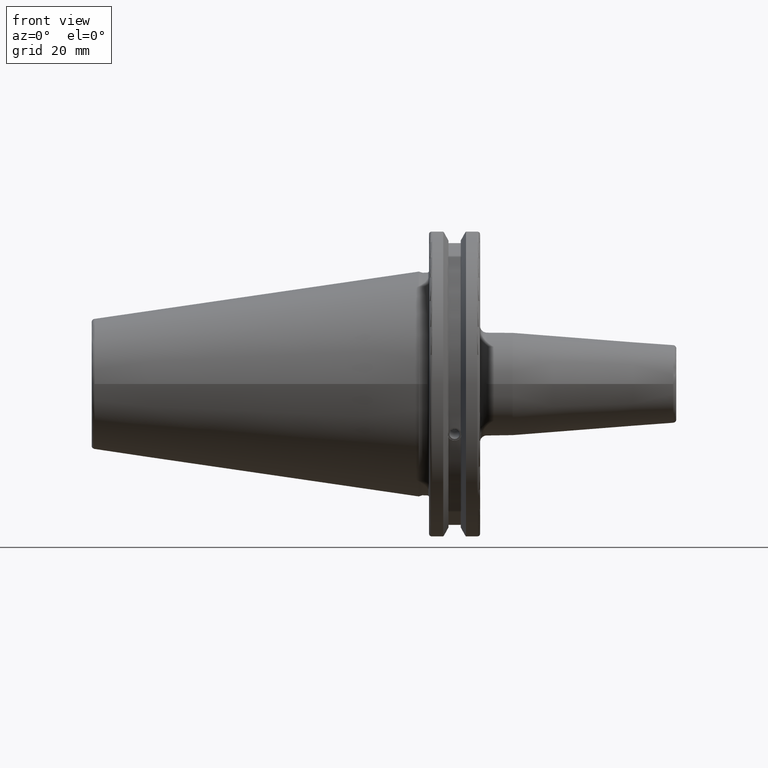
[diagram: clean part render]
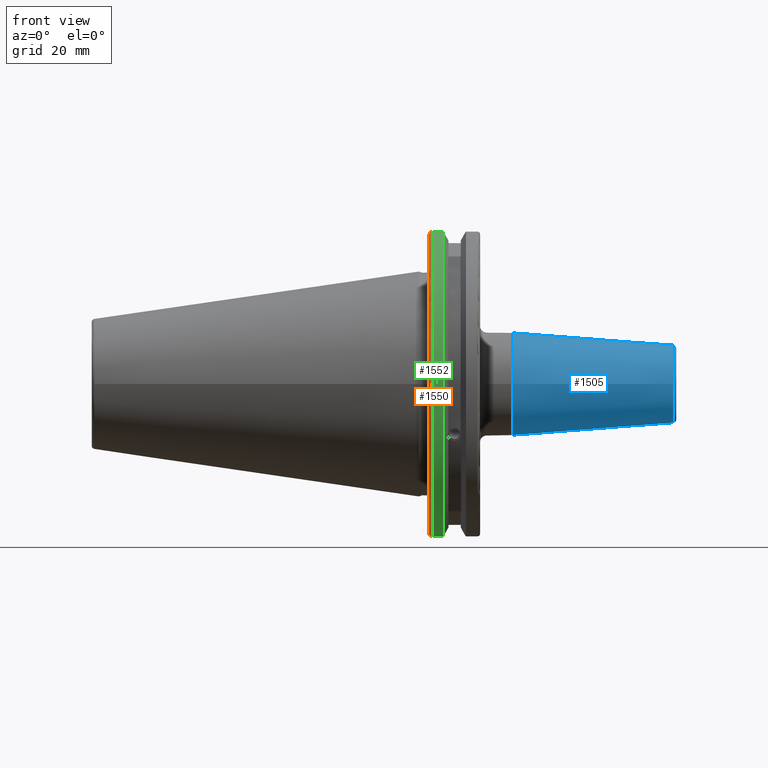
[diagram: same view with three faces highlighted in distinct colors, each labeled with its STEP entity id]
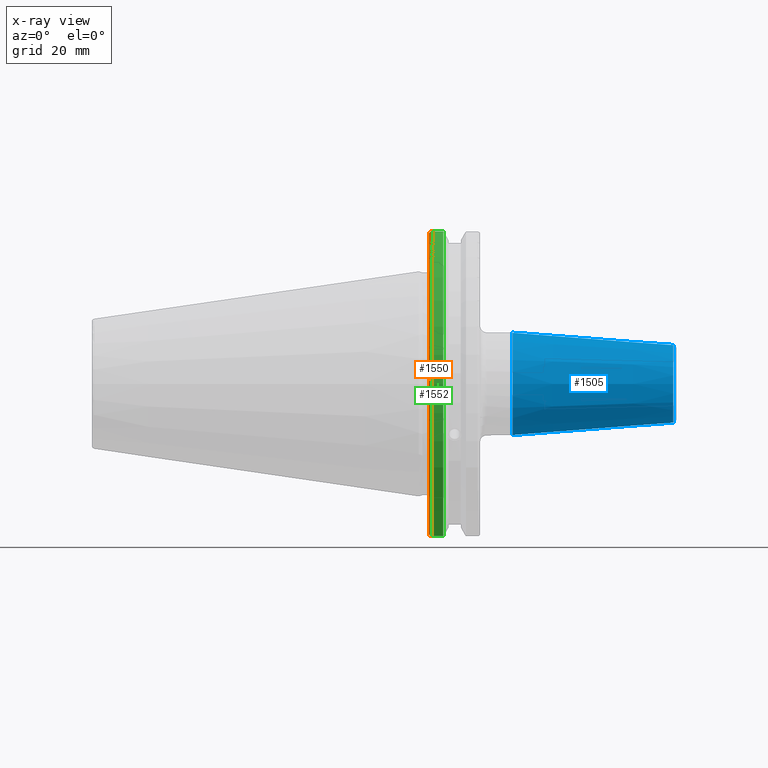
[diagram: x-ray of the same camera — body ghosted, the three highlighted faces saturated]
A machine part, front view with three faces highlighted in distinct colors.
The next image is the same camera in x-ray (body ghosted, the three faces saturated) — at least one of them is partly hidden behind the body in this view.
Their STEP definitions:

[orange] entity #1550 — the highlighted toroidal blend (fillet) surface has major radius 48.2125 mm and minor (blend) radius 1 mm.
#62=B_SPLINE_CURVE_WITH_KNOTS('',3,(#2984,#2985,#2986,#2987,#2988,#2989),
 .UNSPECIFIED.,.F.,.F.,(4,2,4),(0.0976892167532858,0.112000071948292,0.150881870548587),
 .UNSPECIFIED.);
#63=B_SPLINE_CURVE_WITH_KNOTS('',3,(#3010,#3011,#3012,#3013,#3014,#3015),
 .UNSPECIFIED.,.F.,.F.,(4,2,4),(0.452859340315922,0.491741138916218,0.506051994111223),
 .UNSPECIFIED.);
#64=B_SPLINE_CURVE_WITH_KNOTS('',3,(#3019,#3020,#3021,#3022,#3023,#3024,
#3025,#3026),.UNSPECIFIED.,.F.,.F.,(4,2,2,4),(-0.104075769062722,-0.0730268503455485,
-0.034363987365627,0.),.UNSPECIFIED.);
#65=B_SPLINE_CURVE_WITH_KNOTS('',3,(#3029,#3030,#3031,#3032,#3033,#3034,
#3035,#3036),.UNSPECIFIED.,.F.,.F.,(4,2,2,4),(0.,0.0343639873656262,0.073026850345548,
0.104075769062723),.UNSPECIFIED.);
#110=TOROIDAL_SURFACE('',#1725,48.2125,1.);
#205=FACE_OUTER_BOUND('',#314,.T.);
#314=EDGE_LOOP('',(#1301,#1302,#1303,#1304,#1305,#1306));
#407=CIRCLE('',#1713,48.2125);
#412=CIRCLE('',#1726,49.2125);
#725=VERTEX_POINT('',#2864);
#726=VERTEX_POINT('',#2865);
#749=VERTEX_POINT('',#2983);
#755=VERTEX_POINT('',#3008);
#756=VERTEX_POINT('',#3018);
#757=VERTEX_POINT('',#3027);
#912=EDGE_CURVE('',#725,#726,#407,.T.);
#944=EDGE_CURVE('',#749,#725,#62,.T.);
#954=EDGE_CURVE('',#726,#755,#63,.T.);
#956=EDGE_CURVE('',#755,#756,#64,.T.);
#957=EDGE_CURVE('',#756,#757,#412,.T.);
#958=EDGE_CURVE('',#757,#749,#65,.T.);
#1301=ORIENTED_EDGE('',*,*,#956,.T.);
#1302=ORIENTED_EDGE('',*,*,#957,.T.);
#1303=ORIENTED_EDGE('',*,*,#958,.T.);
#1304=ORIENTED_EDGE('',*,*,#944,.T.);
#1305=ORIENTED_EDGE('',*,*,#912,.T.);
#1306=ORIENTED_EDGE('',*,*,#954,.T.);
#1550=ADVANCED_FACE('',(#205),#110,.T.);
#1713=AXIS2_PLACEMENT_3D('',#2866,#2037,#2038);
#1725=AXIS2_PLACEMENT_3D('',#3017,#2085,#2086);
#1726=AXIS2_PLACEMENT_3D('',#3028,#2087,#2088);
#2037=DIRECTION('center_axis',(1.,0.,0.));
#2038=DIRECTION('ref_axis',(0.,-1.,1.60812264967664E-16));
#2085=DIRECTION('center_axis',(1.,0.,0.));
#2086=DIRECTION('ref_axis',(0.,0.,-1.));
#2087=DIRECTION('center_axis',(-1.,0.,0.));
#2088=DIRECTION('ref_axis',(0.,-1.,1.60812264967664E-16));
#2864=CARTESIAN_POINT('',(3.175,-12.95,46.4407434937254));
#2865=CARTESIAN_POINT('',(3.175,-12.95,-46.4407434937254));
#2866=CARTESIAN_POINT('Origin',(3.175,0.,0.));
#2983=CARTESIAN_POINT('',(3.31949794294344,-12.95,46.9780755322918));
#2984=CARTESIAN_POINT('Ctrl Pts',(3.31949794294344,-12.95,46.9780755322918));
#2985=CARTESIAN_POINT('Ctrl Pts',(3.29341556483839,-12.95,46.9333752207329));
#2986=CARTESIAN_POINT('Ctrl Pts',(3.27115672912336,-12.95,46.887363294568));
#2987=CARTESIAN_POINT('Ctrl Pts',(3.20453530071253,-12.95,46.7230464903732));
#2988=CARTESIAN_POINT('Ctrl Pts',(3.175,-12.95,46.5703494890597));
#2989=CARTESIAN_POINT('Ctrl Pts',(3.175,-12.95,46.4407434937254));
#3008=CARTESIAN_POINT('',(3.31949794294343,-12.95,-46.9780755322917));
#3010=CARTESIAN_POINT('Ctrl Pts',(3.175,-12.95,-46.4407434937254));
#3011=CARTESIAN_POINT('Ctrl Pts',(3.175,-12.95,-46.5703494890597));
#3012=CARTESIAN_POINT('Ctrl Pts',(3.20453530071253,-12.95,-46.7230464903732));
#3013=CARTESIAN_POINT('Ctrl Pts',(3.27115672912336,-12.95,-46.887363294568));
#3014=CARTESIAN_POINT('Ctrl Pts',(3.29341556483838,-12.95,-46.9333752207329));
#3015=CARTESIAN_POINT('Ctrl Pts',(3.31949794294343,-12.95,-46.9780755322917));
#3017=CARTESIAN_POINT('Origin',(4.175,0.,0.));
#3018=CARTESIAN_POINT('',(4.175,-13.4317035994433,-47.3440544806494));
#3019=CARTESIAN_POINT('Ctrl Pts',(3.31949794294343,-12.95,-46.9780755322917));
#3020=CARTESIAN_POINT('Ctrl Pts',(3.36785032278753,-13.0300321736484,-47.0388807469102));
#3021=CARTESIAN_POINT('Ctrl Pts',(3.43235971798504,-13.1083611826073,-47.0983919657547));
#3022=CARTESIAN_POINT('Ctrl Pts',(3.58507512107923,-13.2478194810696,-47.2043467509586));
#3023=CARTESIAN_POINT('Ctrl Pts',(3.70638116490964,-13.3242014686233,-47.2623787015413));
#3024=CARTESIAN_POINT('Ctrl Pts',(3.92661103245834,-13.4067722493645,-47.3251126473446));
#3025=CARTESIAN_POINT('Ctrl Pts',(4.06045337544791,-13.4317035994434,-47.3440544806494));
#3026=CARTESIAN_POINT('Ctrl Pts',(4.175,-13.4317035994434,-47.3440544806494));
#3027=CARTESIAN_POINT('',(4.175,-13.4317035994433,47.3440544806494));
#3028=CARTESIAN_POINT('Origin',(4.175,0.,0.));
#3029=CARTESIAN_POINT('Ctrl Pts',(4.175,-13.4317035994433,47.3440544806494));
#3030=CARTESIAN_POINT('Ctrl Pts',(4.06045337544791,-13.4317035994433,47.3440544806494));
#3031=CARTESIAN_POINT('Ctrl Pts',(3.92661103245835,-13.4067722493645,47.3251126473446));
#3032=CARTESIAN_POINT('Ctrl Pts',(3.70638116490965,-13.3242014686233,47.2623787015413));
#3033=CARTESIAN_POINT('Ctrl Pts',(3.58507512107923,-13.2478194810695,47.2043467509586));
#3034=CARTESIAN_POINT('Ctrl Pts',(3.43235971798504,-13.1083611826073,47.0983919657547));
#3035=CARTESIAN_POINT('Ctrl Pts',(3.36785032278754,-13.0300321736484,47.0388807469102));
#3036=CARTESIAN_POINT('Ctrl Pts',(3.31949794294344,-12.95,46.9780755322918));

[blue] entity #1505 — the highlighted conical surface has half-angle 4.5 deg.
#69=CONICAL_SURFACE('',#1631,14.,0.0785398163397454);
#160=FACE_OUTER_BOUND('',#253,.T.);
#253=EDGE_LOOP('',(#1037,#1038,#1039,#1040,#1041));
#363=CIRCLE('',#1629,12.0725268420749);
#364=CIRCLE('',#1630,12.0725268420749);
#365=CIRCLE('',#1632,16.);
#435=LINE('',#2260,#529);
#529=VECTOR('',#1831,14.);
#633=VERTEX_POINT('',#2253);
#634=VERTEX_POINT('',#2255);
#635=VERTEX_POINT('',#2259);
#792=EDGE_CURVE('',#633,#634,#363,.T.);
#793=EDGE_CURVE('',#634,#633,#364,.T.);
#794=EDGE_CURVE('',#634,#635,#435,.T.);
#795=EDGE_CURVE('',#635,#635,#365,.T.);
#1037=ORIENTED_EDGE('',*,*,#793,.F.);
#1038=ORIENTED_EDGE('',*,*,#794,.T.);
#1039=ORIENTED_EDGE('',*,*,#795,.T.);
#1040=ORIENTED_EDGE('',*,*,#794,.F.);
#1041=ORIENTED_EDGE('',*,*,#792,.F.);
#1505=ADVANCED_FACE('',(#160),#69,.T.);
#1629=AXIS2_PLACEMENT_3D('',#2256,#1825,#1826);
#1630=AXIS2_PLACEMENT_3D('',#2257,#1827,#1828);
#1631=AXIS2_PLACEMENT_3D('',#2258,#1829,#1830);
#1632=AXIS2_PLACEMENT_3D('',#2261,#1832,#1833);
#1825=DIRECTION('center_axis',(1.,0.,0.));
#1826=DIRECTION('ref_axis',(0.,-1.,3.06161699786838E-17));
#1827=DIRECTION('center_axis',(1.,0.,0.));
#1828=DIRECTION('ref_axis',(0.,-1.,3.06161699786838E-17));
#1829=DIRECTION('center_axis',(-1.,0.,0.));
#1830=DIRECTION('ref_axis',(0.,1.,0.));
#1831=DIRECTION('',(-0.996917333733128,-0.0784590957278455,-9.60846804471018E-18));
#1832=DIRECTION('center_axis',(1.,0.,0.));
#1833=DIRECTION('ref_axis',(0.,0.,-1.));
#2253=CARTESIAN_POINT('',(79.0784590957279,-1.47845813547676E-15,12.0725268420749));
#2255=CARTESIAN_POINT('',(79.0784590957279,-12.0725268420749,-1.47845813547676E-15));
#2256=CARTESIAN_POINT('Origin',(79.0784590957279,0.,-1.84807266934594E-15));
#2257=CARTESIAN_POINT('Origin',(79.0784590957279,0.,-1.84807266934594E-15));
#2258=CARTESIAN_POINT('Origin',(54.5875905276507,0.,0.));
#2259=CARTESIAN_POINT('',(29.1751810553015,-16.,-1.95943487863577E-15));
#2260=CARTESIAN_POINT('',(54.5875905276507,-14.,-1.71450551880629E-15));
#2261=CARTESIAN_POINT('Origin',(29.1751810553015,0.,0.));

[green] entity #1552 — the highlighted cylindrical surface (partial cylindrical patch) has radius 49.2125 mm, axis along (1, 0, 0).
#207=FACE_OUTER_BOUND('',#316,.T.);
#316=EDGE_LOOP('',(#1311,#1312,#1313,#1314));
#412=CIRCLE('',#1726,49.2125);
#413=CIRCLE('',#1729,49.2125);
#503=LINE('',#3039,#597);
#504=LINE('',#3045,#598);
#597=VECTOR('',#2091,10.);
#598=VECTOR('',#2094,10.);
#756=VERTEX_POINT('',#3018);
#757=VERTEX_POINT('',#3027);
#758=VERTEX_POINT('',#3038);
#759=VERTEX_POINT('',#3044);
#957=EDGE_CURVE('',#756,#757,#412,.T.);
#959=EDGE_CURVE('',#757,#758,#503,.T.);
#961=EDGE_CURVE('',#759,#756,#504,.T.);
#962=EDGE_CURVE('',#758,#759,#413,.T.);
#1311=ORIENTED_EDGE('',*,*,#957,.F.);
#1312=ORIENTED_EDGE('',*,*,#961,.F.);
#1313=ORIENTED_EDGE('',*,*,#962,.F.);
#1314=ORIENTED_EDGE('',*,*,#959,.F.);
#1489=CYLINDRICAL_SURFACE('',#1728,49.2125);
#1552=ADVANCED_FACE('',(#207),#1489,.T.);
#1726=AXIS2_PLACEMENT_3D('',#3028,#2087,#2088);
#1728=AXIS2_PLACEMENT_3D('',#3043,#2092,#2093);
#1729=AXIS2_PLACEMENT_3D('',#3046,#2095,#2096);
#2087=DIRECTION('center_axis',(-1.,0.,0.));
#2088=DIRECTION('ref_axis',(0.,-1.,1.60812264967664E-16));
#2091=DIRECTION('',(1.,0.,0.));
#2092=DIRECTION('center_axis',(1.,0.,0.));
#2093=DIRECTION('ref_axis',(0.,-1.,1.22464679914735E-16));
#2094=DIRECTION('',(-1.,0.,0.));
#2095=DIRECTION('center_axis',(1.,0.,0.));
#2096=DIRECTION('ref_axis',(0.,0.,-1.));
#3018=CARTESIAN_POINT('',(4.175,-13.4317035994433,-47.3440544806494));
#3027=CARTESIAN_POINT('',(4.175,-13.4317035994433,47.3440544806494));
#3028=CARTESIAN_POINT('Origin',(4.175,0.,0.));
#3038=CARTESIAN_POINT('',(7.60799096595127,-13.4317035994433,47.3440544806494));
#3039=CARTESIAN_POINT('',(5.39149548297563,-13.4317035994433,47.3440544806494));
#3043=CARTESIAN_POINT('Origin',(5.39149548297563,0.,0.));
#3044=CARTESIAN_POINT('',(7.60799096595127,-13.4317035994433,-47.3440544806494));
#3045=CARTESIAN_POINT('',(5.39149548297563,-13.4317035994433,-47.3440544806494));
#3046=CARTESIAN_POINT('Origin',(7.60799096595127,0.,0.));